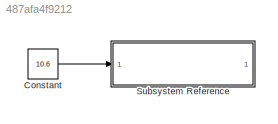
MODEL slx_487afa4f9212
KIND model
CONFIG AbsTol = auto
CONFIG EnableMultiTasking = on
CONFIG FixedStep = auto
CONFIG MaxStep = auto
CONFIG MinStep = auto
CONFIG RelTol = 1e-3
CONFIG SampleTimeConstraint = Unconstrained
CONFIG SolverName = FixedStepAuto
CONFIG StartTime = 0.0
CONFIG StopTime = inf
BLOCK [Constant] Constant
  OutDataTypeStr = double
  Value = 10.6
BLOCK [SubSystem] Subsystem Reference
  ReferencedSubsystem = LedsBattery
LINE Constant:1 -> Subsystem Reference:1
